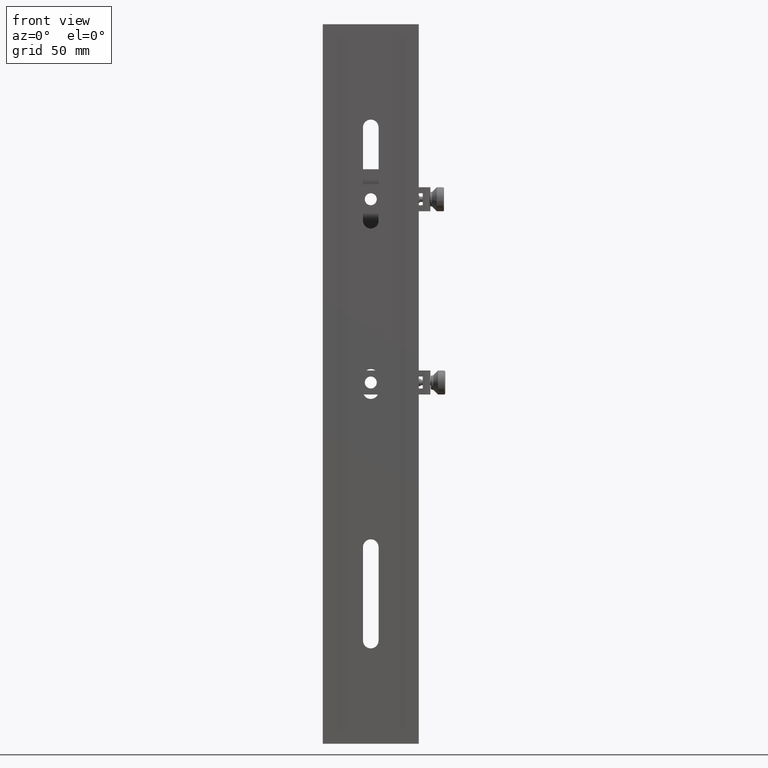
[diagram: clean part render]
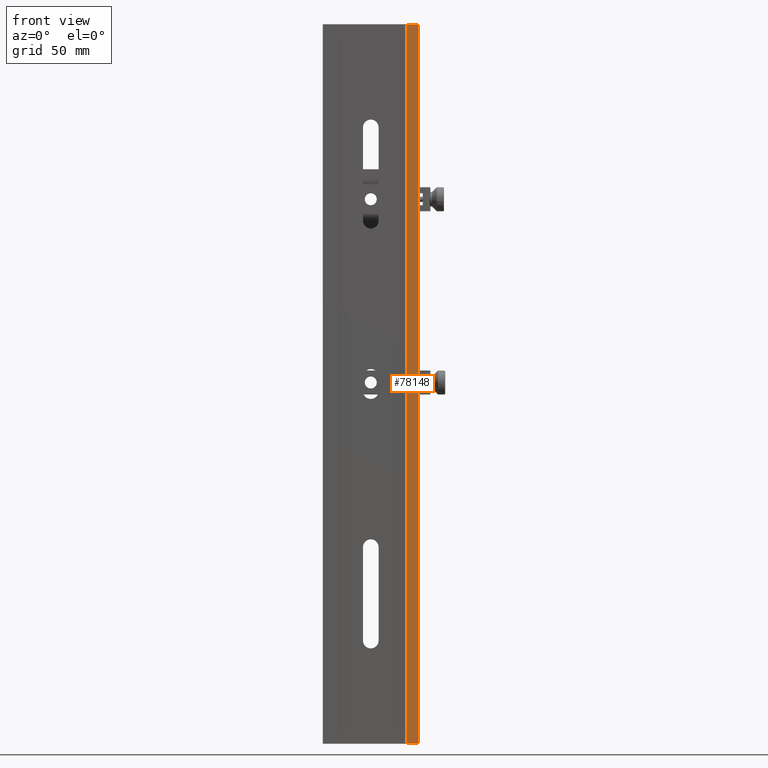
[diagram: same view with one face highlighted and labeled with its STEP entity id]
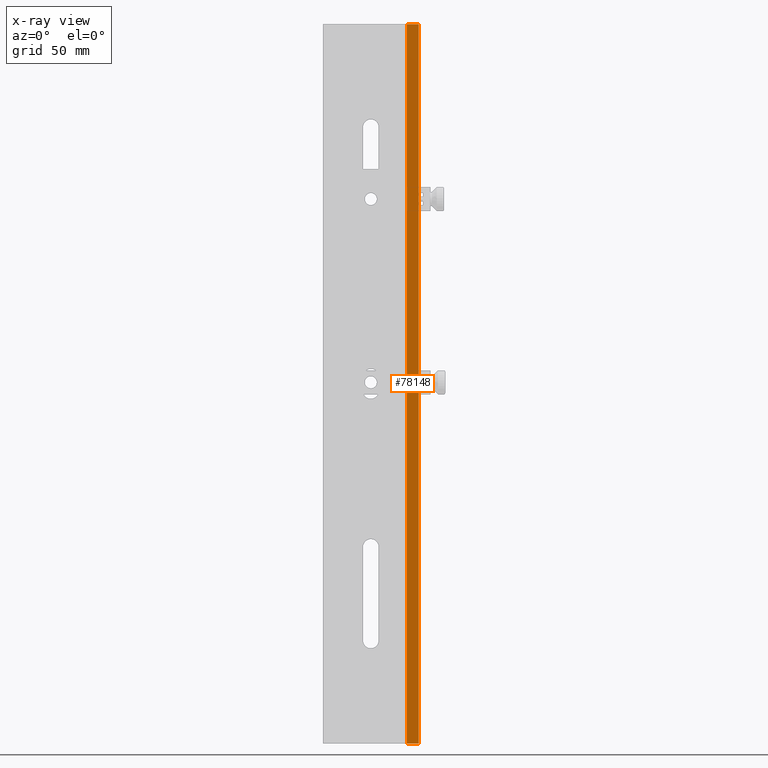
[diagram: x-ray of the same camera — body ghosted, the highlighted face saturated]
A machine part, front view. The second image highlights one B-rep face of the part: STEP entity #78148.
The next image is the same camera in x-ray: the body ghosted, the highlighted face saturated — about 0% of this face is hidden behind the body in this view.
In plain terms, the highlighted planar face has unit normal (-0, 1, 0).
Its self-contained STEP definition (entity closure, byte-faithful):
#35 = LINE ( 'NONE', #66547, #95271 ) ;
#309 = VECTOR ( 'NONE', #16966, 1000.000000000000000 ) ;
#1190 = DIRECTION ( 'NONE',  ( -1.301042606982603842E-16, 1.000000000000000000, 0.000000000000000000 ) ) ;
#16966 = DIRECTION ( 'NONE',  ( -1.236303256585105793E-16, 0.000000000000000000, 1.000000000000000000 ) ) ;
#21695 = CARTESIAN_POINT ( 'NONE',  ( -20.00000000000000000, -6.500000000000000000, 150.0000000000000000 ) ) ;
#25699 = CARTESIAN_POINT ( 'NONE',  ( 15.00000000000000000, -6.500000000000000000, 294.6622748219315326 ) ) ;
#35989 = CARTESIAN_POINT ( 'NONE',  ( 15.00000000000000000, -6.500000000000000000, -150.0000000000000000 ) ) ;
#39544 = VECTOR ( 'NONE', #54923, 1000.000000000000000 ) ;
#40063 = VERTEX_POINT ( 'NONE', #75622 ) ;
#42608 = PLANE ( 'NONE',  #50563 ) ;
#43138 = DIRECTION ( 'NONE',  ( 1.000000000000000000, 1.301042606982603842E-16, 0.000000000000000000 ) ) ;
#46791 = CARTESIAN_POINT ( 'NONE',  ( -20.00000000000000000, -6.500000000000000000, -150.0000000000000000 ) ) ;
#48597 = VERTEX_POINT ( 'NONE', #35989 ) ;
#50563 = AXIS2_PLACEMENT_3D ( 'NONE', #50792, #1190, #43138 ) ;
#50792 = CARTESIAN_POINT ( 'NONE',  ( -20.00000000000000000, -6.500000000000000000, 150.0000000000000000 ) ) ;
#54923 = DIRECTION ( 'NONE',  ( 1.000000000000000000, 1.301042606982603842E-16, 0.000000000000000000 ) ) ;
#56177 = ORIENTED_EDGE ( 'NONE', *, *, #65440, .F. ) ;
#59497 = LINE ( 'NONE', #25699, #309 ) ;
#63712 = LINE ( 'NONE', #46791, #66223 ) ;
#63821 = VERTEX_POINT ( 'NONE', #68614 ) ;
#65440 = EDGE_CURVE ( 'NONE', #63821, #95963, #35, .T. ) ;
#66223 = VECTOR ( 'NONE', #71909, 1000.000000000000000 ) ;
#66547 = CARTESIAN_POINT ( 'NONE',  ( 20.00000000000000000, -6.500000000000000000, 150.0000000000000000 ) ) ;
#68614 = CARTESIAN_POINT ( 'NONE',  ( 20.00000000000000000, -6.500000000000000000, 150.0000000000000000 ) ) ;
#71909 = DIRECTION ( 'NONE',  ( 1.000000000000000000, 1.301042606982603842E-16, 0.000000000000000000 ) ) ;
#72483 = ORIENTED_EDGE ( 'NONE', *, *, #91014, .T. ) ;
#74367 = ORIENTED_EDGE ( 'NONE', *, *, #95956, .F. ) ;
#74780 = FACE_OUTER_BOUND ( 'NONE', #104355, .T. ) ;
#75622 = CARTESIAN_POINT ( 'NONE',  ( 15.00000000000000000, -6.500000000000000000, 150.0000000000000000 ) ) ;
#78148 = ADVANCED_FACE ( 'NONE', ( #74780 ), #42608, .F. ) ;
#80539 = LINE ( 'NONE', #21695, #39544 ) ;
#84547 = CARTESIAN_POINT ( 'NONE',  ( 20.00000000000000000, -6.500000000000000000, -150.0000000000000000 ) ) ;
#91014 = EDGE_CURVE ( 'NONE', #48597, #95963, #63712, .T. ) ;
#92945 = ORIENTED_EDGE ( 'NONE', *, *, #100717, .F. ) ;
#95271 = VECTOR ( 'NONE', #99753, 1000.000000000000000 ) ;
#95956 = EDGE_CURVE ( 'NONE', #48597, #40063, #59497, .T. ) ;
#95963 = VERTEX_POINT ( 'NONE', #84547 ) ;
#99753 = DIRECTION ( 'NONE',  ( 0.000000000000000000, 0.000000000000000000, -1.000000000000000000 ) ) ;
#100717 = EDGE_CURVE ( 'NONE', #40063, #63821, #80539, .T. ) ;
#104355 = EDGE_LOOP ( 'NONE', ( #92945, #74367, #72483, #56177 ) ) ;